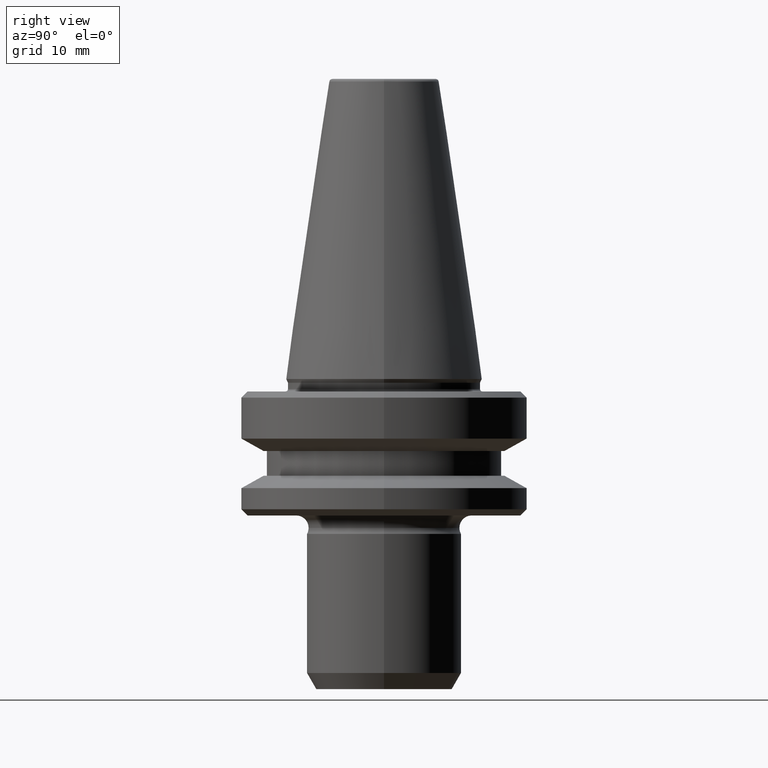
[diagram: clean part render]
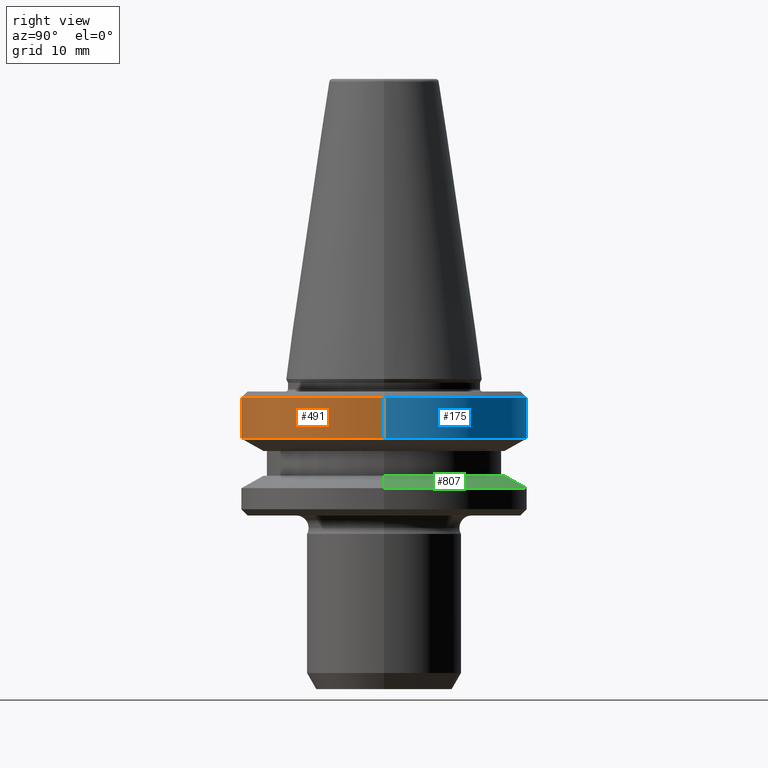
[diagram: same view with three faces highlighted in distinct colors, each labeled with its STEP entity id]
A machine part, right view with three faces highlighted in distinct colors.
Their STEP definitions:

[orange] entity #491 — the highlighted cylindrical surface (partial cylindrical patch) has radius 23 mm, axis along (-0, -0, 1).
#3 = AXIS2_PLACEMENT_3D ( 'NONE', #440, #992, #515 ) ;
#40 = AXIS2_PLACEMENT_3D ( 'NONE', #948, #867, #246 ) ;
#51 = CARTESIAN_POINT ( 'NONE',  ( 22.99999999999990800, 0.0000000000000000000, 102.7767479270557900 ) ) ;
#91 = CARTESIAN_POINT ( 'NONE',  ( 22.99999999999990800, 0.0000000000000000000, -9.600117335054669400 ) ) ;
#108 = CARTESIAN_POINT ( 'NONE',  ( -22.99999999999990800, 2.816687638038901300E-015, 102.7767479270557900 ) ) ;
#139 = DIRECTION ( 'NONE',  ( -0.0000000000000000000, -0.0000000000000000000, 1.000000000000000000 ) ) ;
#188 = FACE_OUTER_BOUND ( 'NONE', #496, .T. ) ;
#239 = CARTESIAN_POINT ( 'NONE',  ( -22.99999999999990800, 2.816687638038901300E-015, -9.600117335054669400 ) ) ;
#246 = DIRECTION ( 'NONE',  ( 1.000000000000000000, 0.0000000000000000000, 0.0000000000000000000 ) ) ;
#253 = ORIENTED_EDGE ( 'NONE', *, *, #684, .F. ) ;
#288 = EDGE_CURVE ( 'NONE', #334, #696, #586, .T. ) ;
#294 = VECTOR ( 'NONE', #865, 1000.000000000000000 ) ;
#299 = VERTEX_POINT ( 'NONE', #904 ) ;
#334 = VERTEX_POINT ( 'NONE', #91 ) ;
#347 = ORIENTED_EDGE ( 'NONE', *, *, #463, .F. ) ;
#368 = CYLINDRICAL_SURFACE ( 'NONE', #40, 22.99999999999990800 ) ;
#440 = CARTESIAN_POINT ( 'NONE',  ( 0.0000000000000000000, 0.0000000000000000000, -9.600117335054669400 ) ) ;
#463 = EDGE_CURVE ( 'NONE', #299, #696, #1018, .T. ) ;
#491 = ADVANCED_FACE ( 'NONE', ( #188 ), #368, .T. ) ;
#496 = EDGE_LOOP ( 'NONE', ( #253, #873, #808, #347 ) ) ;
#515 = DIRECTION ( 'NONE',  ( 1.000000000000000000, 0.0000000000000000000, 0.0000000000000000000 ) ) ;
#525 = CARTESIAN_POINT ( 'NONE',  ( 22.99999999999990800, 0.0000000000000000000, -2.999999999999891600 ) ) ;
#537 = VERTEX_POINT ( 'NONE', #239 ) ;
#560 = LINE ( 'NONE', #108, #764 ) ;
#579 = EDGE_CURVE ( 'NONE', #537, #334, #818, .T. ) ;
#586 = LINE ( 'NONE', #51, #294 ) ;
#629 = CARTESIAN_POINT ( 'NONE',  ( 0.0000000000000000000, 0.0000000000000000000, -2.999999999999891600 ) ) ;
#684 = EDGE_CURVE ( 'NONE', #537, #299, #560, .T. ) ;
#696 = VERTEX_POINT ( 'NONE', #525 ) ;
#707 = DIRECTION ( 'NONE',  ( 1.000000000000000000, 0.0000000000000000000, 0.0000000000000000000 ) ) ;
#749 = AXIS2_PLACEMENT_3D ( 'NONE', #629, #139, #707 ) ;
#764 = VECTOR ( 'NONE', #1001, 1000.000000000000000 ) ;
#808 = ORIENTED_EDGE ( 'NONE', *, *, #288, .T. ) ;
#818 = CIRCLE ( 'NONE', #3, 22.99999999999990800 ) ;
#865 = DIRECTION ( 'NONE',  ( -0.0000000000000000000, -0.0000000000000000000, 1.000000000000000000 ) ) ;
#867 = DIRECTION ( 'NONE',  ( -0.0000000000000000000, -0.0000000000000000000, 1.000000000000000000 ) ) ;
#873 = ORIENTED_EDGE ( 'NONE', *, *, #579, .T. ) ;
#904 = CARTESIAN_POINT ( 'NONE',  ( -22.99999999999990800, 2.816687638038901300E-015, -2.999999999999891600 ) ) ;
#948 = CARTESIAN_POINT ( 'NONE',  ( 0.0000000000000000000, 0.0000000000000000000, 102.7767479270557900 ) ) ;
#992 = DIRECTION ( 'NONE',  ( -0.0000000000000000000, -0.0000000000000000000, 1.000000000000000000 ) ) ;
#1001 = DIRECTION ( 'NONE',  ( -0.0000000000000000000, -0.0000000000000000000, 1.000000000000000000 ) ) ;
#1018 = CIRCLE ( 'NONE', #749, 22.99999999999990800 ) ;

[blue] entity #175 — the highlighted cylindrical surface (partial cylindrical patch) has radius 23 mm, axis along (-0, -0, 1).
#51 = CARTESIAN_POINT ( 'NONE',  ( 22.99999999999990800, 0.0000000000000000000, 102.7767479270557900 ) ) ;
#91 = CARTESIAN_POINT ( 'NONE',  ( 22.99999999999990800, 0.0000000000000000000, -9.600117335054669400 ) ) ;
#108 = CARTESIAN_POINT ( 'NONE',  ( -22.99999999999990800, 2.816687638038901300E-015, 102.7767479270557900 ) ) ;
#175 = ADVANCED_FACE ( 'NONE', ( #933 ), #373, .T. ) ;
#178 = DIRECTION ( 'NONE',  ( -0.0000000000000000000, -0.0000000000000000000, 1.000000000000000000 ) ) ;
#226 = ORIENTED_EDGE ( 'NONE', *, *, #684, .T. ) ;
#231 = AXIS2_PLACEMENT_3D ( 'NONE', #421, #178, #610 ) ;
#239 = CARTESIAN_POINT ( 'NONE',  ( -22.99999999999990800, 2.816687638038901300E-015, -9.600117335054669400 ) ) ;
#241 = EDGE_LOOP ( 'NONE', ( #740, #226, #637, #596 ) ) ;
#245 = DIRECTION ( 'NONE',  ( 1.000000000000000000, 0.0000000000000000000, 0.0000000000000000000 ) ) ;
#288 = EDGE_CURVE ( 'NONE', #334, #696, #586, .T. ) ;
#294 = VECTOR ( 'NONE', #865, 1000.000000000000000 ) ;
#299 = VERTEX_POINT ( 'NONE', #904 ) ;
#323 = DIRECTION ( 'NONE',  ( 1.000000000000000000, 0.0000000000000000000, 0.0000000000000000000 ) ) ;
#334 = VERTEX_POINT ( 'NONE', #91 ) ;
#373 = CYLINDRICAL_SURFACE ( 'NONE', #975, 22.99999999999990800 ) ;
#415 = DIRECTION ( 'NONE',  ( -0.0000000000000000000, -0.0000000000000000000, 1.000000000000000000 ) ) ;
#421 = CARTESIAN_POINT ( 'NONE',  ( 0.0000000000000000000, 0.0000000000000000000, -2.999999999999891600 ) ) ;
#475 = CARTESIAN_POINT ( 'NONE',  ( 0.0000000000000000000, 0.0000000000000000000, -9.600117335054669400 ) ) ;
#517 = CIRCLE ( 'NONE', #231, 22.99999999999990800 ) ;
#523 = EDGE_CURVE ( 'NONE', #334, #537, #872, .T. ) ;
#525 = CARTESIAN_POINT ( 'NONE',  ( 22.99999999999990800, 0.0000000000000000000, -2.999999999999891600 ) ) ;
#537 = VERTEX_POINT ( 'NONE', #239 ) ;
#540 = AXIS2_PLACEMENT_3D ( 'NONE', #475, #790, #323 ) ;
#560 = LINE ( 'NONE', #108, #764 ) ;
#586 = LINE ( 'NONE', #51, #294 ) ;
#596 = ORIENTED_EDGE ( 'NONE', *, *, #288, .F. ) ;
#610 = DIRECTION ( 'NONE',  ( 1.000000000000000000, 0.0000000000000000000, 0.0000000000000000000 ) ) ;
#637 = ORIENTED_EDGE ( 'NONE', *, *, #926, .F. ) ;
#684 = EDGE_CURVE ( 'NONE', #537, #299, #560, .T. ) ;
#696 = VERTEX_POINT ( 'NONE', #525 ) ;
#740 = ORIENTED_EDGE ( 'NONE', *, *, #523, .T. ) ;
#764 = VECTOR ( 'NONE', #1001, 1000.000000000000000 ) ;
#790 = DIRECTION ( 'NONE',  ( -0.0000000000000000000, -0.0000000000000000000, 1.000000000000000000 ) ) ;
#865 = DIRECTION ( 'NONE',  ( -0.0000000000000000000, -0.0000000000000000000, 1.000000000000000000 ) ) ;
#872 = CIRCLE ( 'NONE', #540, 22.99999999999990800 ) ;
#904 = CARTESIAN_POINT ( 'NONE',  ( -22.99999999999990800, 2.816687638038901300E-015, -2.999999999999891600 ) ) ;
#911 = CARTESIAN_POINT ( 'NONE',  ( 0.0000000000000000000, 0.0000000000000000000, 102.7767479270557900 ) ) ;
#926 = EDGE_CURVE ( 'NONE', #696, #299, #517, .T. ) ;
#933 = FACE_OUTER_BOUND ( 'NONE', #241, .T. ) ;
#975 = AXIS2_PLACEMENT_3D ( 'NONE', #911, #415, #245 ) ;
#1001 = DIRECTION ( 'NONE',  ( -0.0000000000000000000, -0.0000000000000000000, 1.000000000000000000 ) ) ;

[green] entity #807 — the highlighted conical surface has half-angle 60 deg.
#33 = EDGE_CURVE ( 'NONE', #469, #648, #72, .T. ) ;
#72 = LINE ( 'NONE', #651, #780 ) ;
#143 = DIRECTION ( 'NONE',  ( -0.8660254037844380400, 0.0000000000000000000, -0.5000000000000012200 ) ) ;
#182 = EDGE_LOOP ( 'NONE', ( #980, #402, #419, #902 ) ) ;
#204 = DIRECTION ( 'NONE',  ( -0.0000000000000000000, -0.0000000000000000000, 1.000000000000000000 ) ) ;
#219 = CONICAL_SURFACE ( 'NONE', #372, 22.99999999999990800, 1.047197551196596300 ) ;
#228 = AXIS2_PLACEMENT_3D ( 'NONE', #898, #204, #661 ) ;
#248 = FACE_OUTER_BOUND ( 'NONE', #182, .T. ) ;
#310 = CARTESIAN_POINT ( 'NONE',  ( 0.0000000000000000000, 0.0000000000000000000, -17.59988266494566400 ) ) ;
#342 = VECTOR ( 'NONE', #143, 999.9999999999998900 ) ;
#372 = AXIS2_PLACEMENT_3D ( 'NONE', #310, #861, #773 ) ;
#375 = CARTESIAN_POINT ( 'NONE',  ( 22.99999999999990800, 0.0000000000000000000, -17.59988266494566400 ) ) ;
#384 = CARTESIAN_POINT ( 'NONE',  ( 0.0000000000000000000, 0.0000000000000000000, -17.59988266494566400 ) ) ;
#402 = ORIENTED_EDGE ( 'NONE', *, *, #33, .T. ) ;
#419 = ORIENTED_EDGE ( 'NONE', *, *, #811, .T. ) ;
#420 = VERTEX_POINT ( 'NONE', #886 ) ;
#469 = VERTEX_POINT ( 'NONE', #641 ) ;
#492 = EDGE_CURVE ( 'NONE', #646, #420, #547, .T. ) ;
#547 = LINE ( 'NONE', #631, #342 ) ;
#595 = DIRECTION ( 'NONE',  ( -0.0000000000000000000, -0.0000000000000000000, 1.000000000000000000 ) ) ;
#631 = CARTESIAN_POINT ( 'NONE',  ( -22.99999999999990800, 0.0000000000000000000, -17.59988266494566400 ) ) ;
#641 = CARTESIAN_POINT ( 'NONE',  ( 19.53610161513769200, 2.604585034559241000E-015, -15.59999999999994800 ) ) ;
#646 = VERTEX_POINT ( 'NONE', #903 ) ;
#648 = VERTEX_POINT ( 'NONE', #375 ) ;
#651 = CARTESIAN_POINT ( 'NONE',  ( 22.99999999999990800, 2.816687638038901300E-015, -17.59988266494566400 ) ) ;
#661 = DIRECTION ( 'NONE',  ( 1.000000000000000000, 0.0000000000000000000, 0.0000000000000000000 ) ) ;
#773 = DIRECTION ( 'NONE',  ( -1.000000000000000000, 0.0000000000000000000, 0.0000000000000000000 ) ) ;
#778 = CIRCLE ( 'NONE', #228, 19.53610161513769200 ) ;
#780 = VECTOR ( 'NONE', #900, 999.9999999999998900 ) ;
#807 = ADVANCED_FACE ( 'NONE', ( #248 ), #219, .T. ) ;
#811 = EDGE_CURVE ( 'NONE', #648, #420, #830, .T. ) ;
#830 = CIRCLE ( 'NONE', #885, 22.99999999999990800 ) ;
#845 = EDGE_CURVE ( 'NONE', #469, #646, #778, .T. ) ;
#861 = DIRECTION ( 'NONE',  ( 0.0000000000000000000, 0.0000000000000000000, -1.000000000000000000 ) ) ;
#885 = AXIS2_PLACEMENT_3D ( 'NONE', #384, #595, #1045 ) ;
#886 = CARTESIAN_POINT ( 'NONE',  ( -22.99999999999990800, 2.816687638038901300E-015, -17.59988266494566400 ) ) ;
#898 = CARTESIAN_POINT ( 'NONE',  ( 0.0000000000000000000, 0.0000000000000000000, -15.59999999999994800 ) ) ;
#900 = DIRECTION ( 'NONE',  ( 0.8660254037844380400, 1.060575238724906200E-016, -0.5000000000000012200 ) ) ;
#902 = ORIENTED_EDGE ( 'NONE', *, *, #492, .F. ) ;
#903 = CARTESIAN_POINT ( 'NONE',  ( -19.53610161513769200, 0.0000000000000000000, -15.59999999999994800 ) ) ;
#980 = ORIENTED_EDGE ( 'NONE', *, *, #845, .F. ) ;
#1045 = DIRECTION ( 'NONE',  ( 1.000000000000000000, 0.0000000000000000000, 0.0000000000000000000 ) ) ;